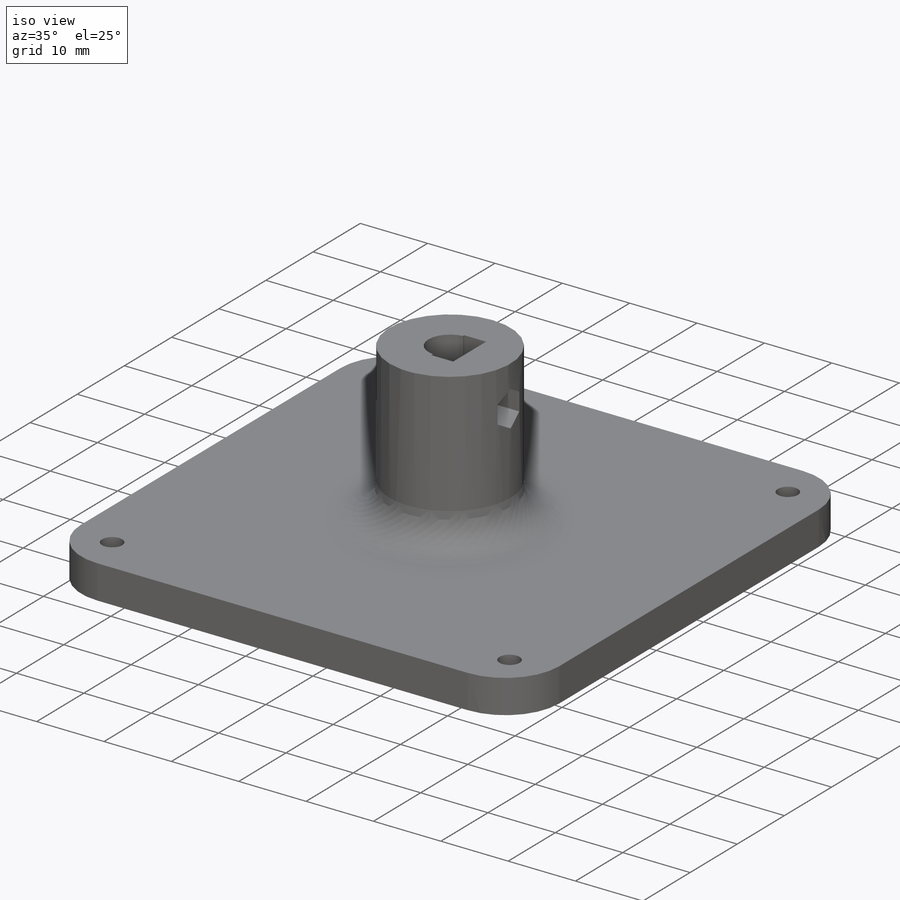
[diagram: iso view]
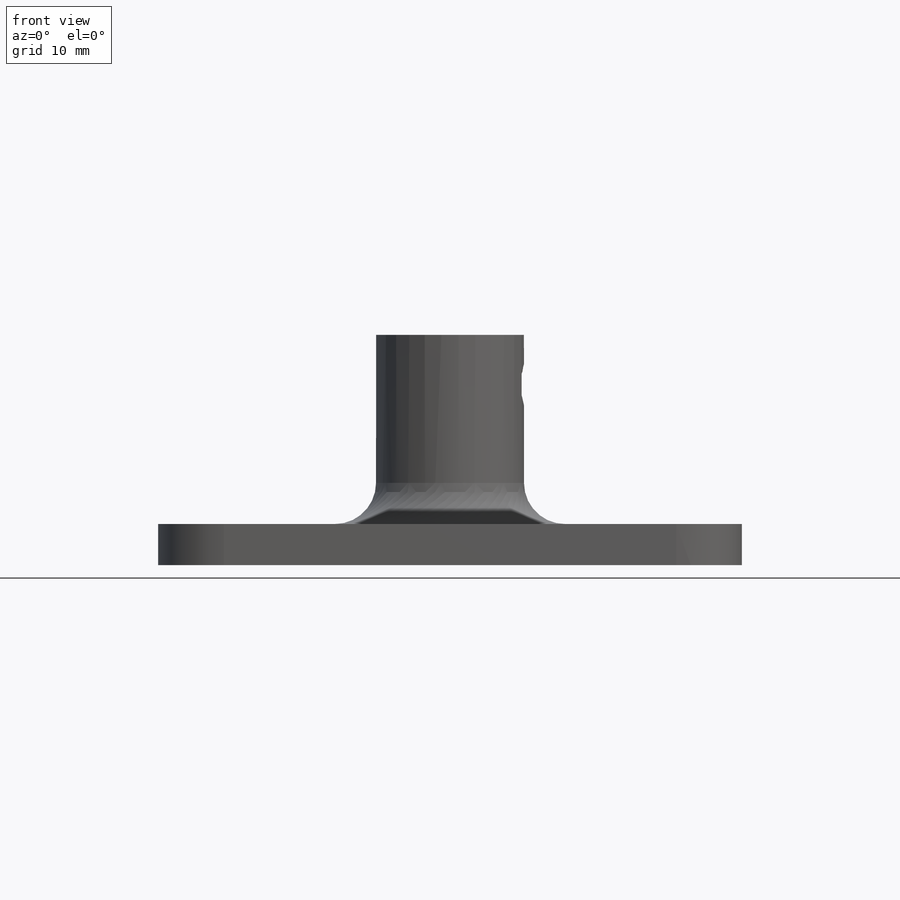
[diagram: front view]
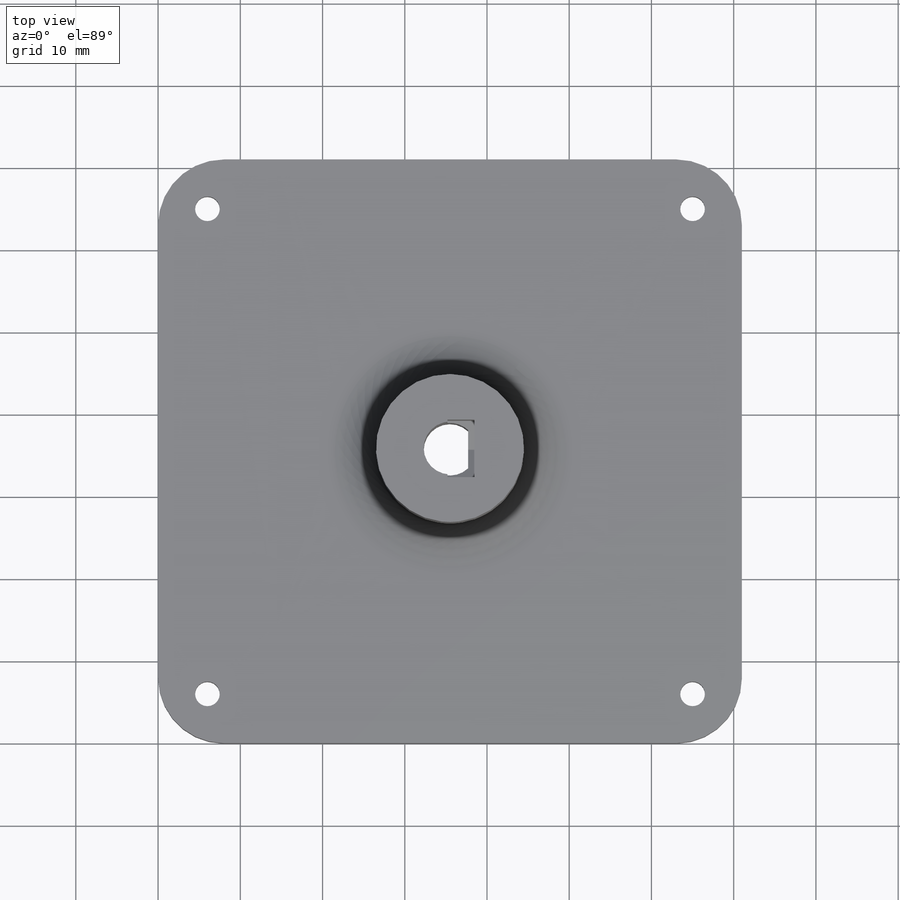
[diagram: top view]
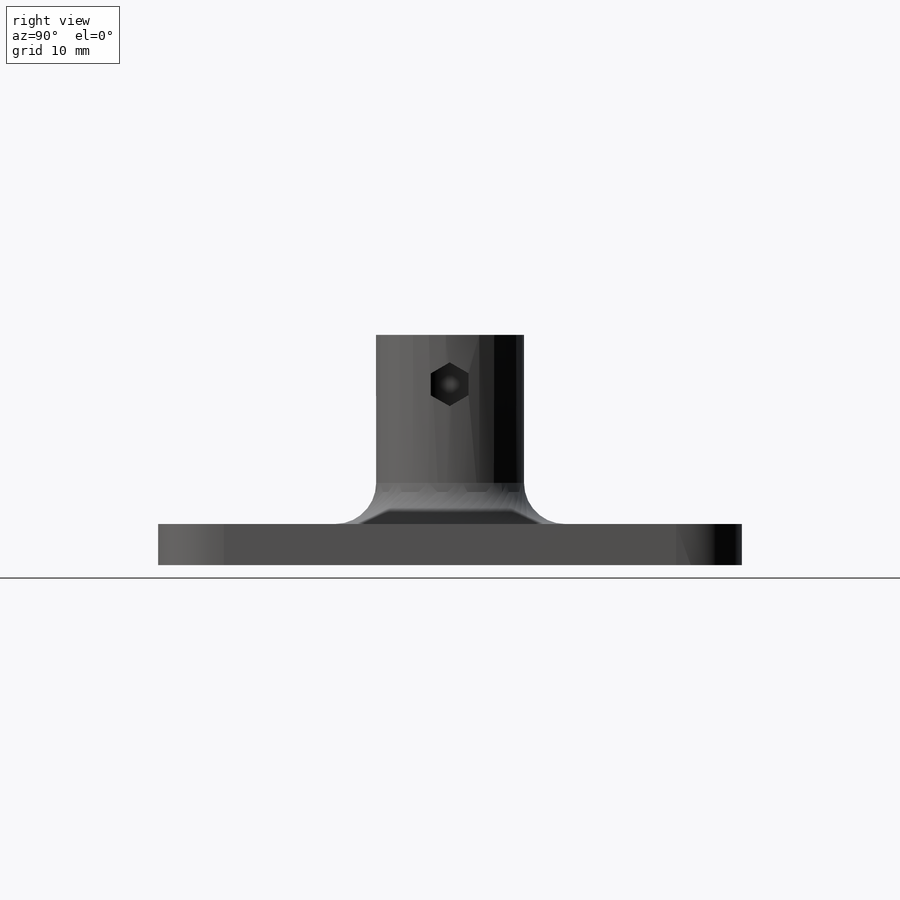
[diagram: right view]
SOLIDWORKS PART (.sldprt)
format: sldprt  version: not decoded by parser v0  size: 326,144 bytes
history: native  units: mm
features: sketch x8, cut_extrude x6, fillet x3, extrude x2, material x1 (+12 scaffold rows collapsed)
feature tree (32):
  scaffold x12  (default folders/planes/origin — collapsed)
  material  "Material <not specified>"
  sketch  "Sketch1"  dims[D1=71.0mm D2=71.0mm]
  extrude  "Boss-Extrude1"  Depth=5mm
  sketch  "Sketch2"  dims[D1=18.0mm]
  extrude  "Boss-Extrude2"  Depth=23mm
  fillet  "Fillet1"  Radius=5mm
  sketch  "Sketch3"  dims[D1=6.4mm D2=2.2mm D3=35.5mm]
  cut_extrude  "Cut-Extrude1"  Depth=46mm
  fillet  "Fillet2"  Radius=8mm
  sketch  "Sketch4"  dims[D1=3.0mm D6=3.0mm D9=3.0mm D12=3.0mm D2=6.0mm D3=6.0mm D4=6.0mm D5=6.0mm D7=6.0mm D8=6.0mm D10=6.0mm D11=6.0mm]
  cut_extrude  "Cut-Extrude2"  [1 undecoded]
  sketch  "Sketch5"  dims[D1=14.4mm]
  cut_extrude  "Cut-Extrude3"  Depth=10mm
  sketch  "Sketch6"  dims[D1=7.0mm D2=2.28mm D3=6.0mm]
  cut_extrude  "Cut-Extrude4"  Depth=3.35mm
  fillet  "Fillet3"  Radius=0.5mm
  sketch  "Sketch10"  dims[D1=4.6mm]
  cut_extrude  "Cut-Extrude9"  [1 undecoded]
  sketch  "Sketch11"
  cut_extrude  "Cut-Extrude10"  Depth=5mm
decode coverage: 16 of 19 modeling features carry decoded parameters
note: 2 parameter values undecoded
note: suppression state not decoded; provenance and decode notes live in map.json
